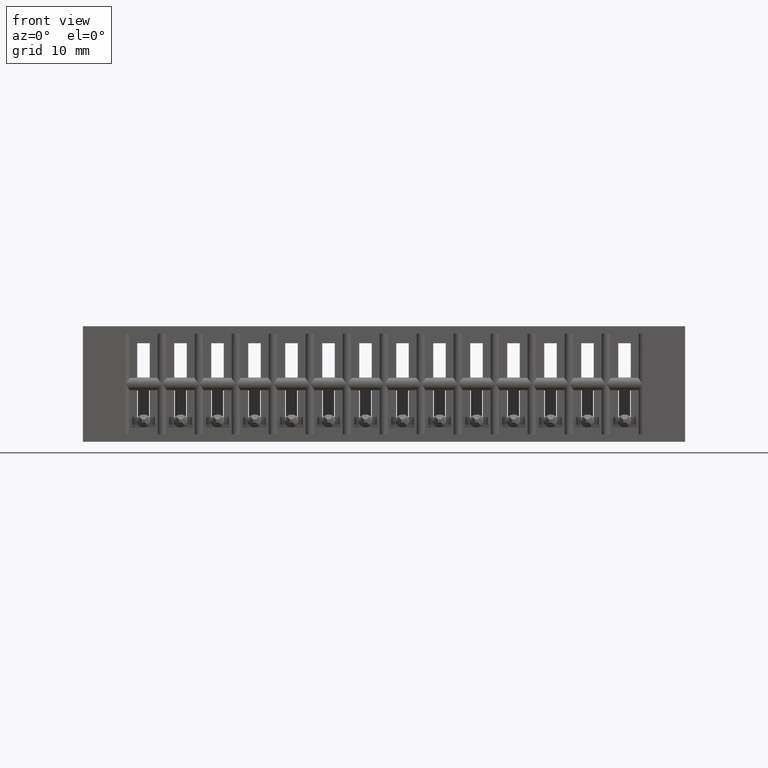
[diagram: clean part render]
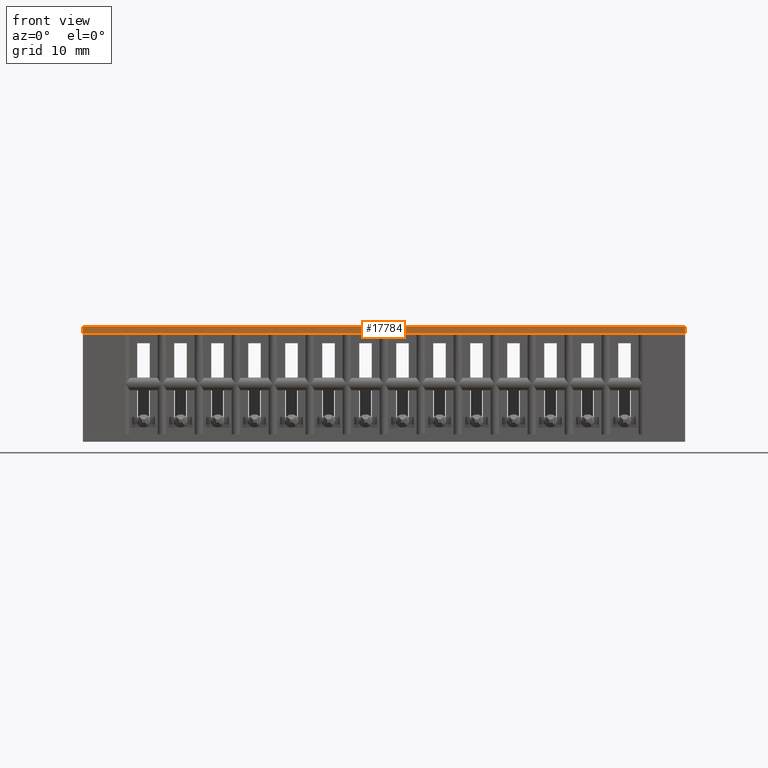
[diagram: same view with one face highlighted and labeled with its STEP entity id]
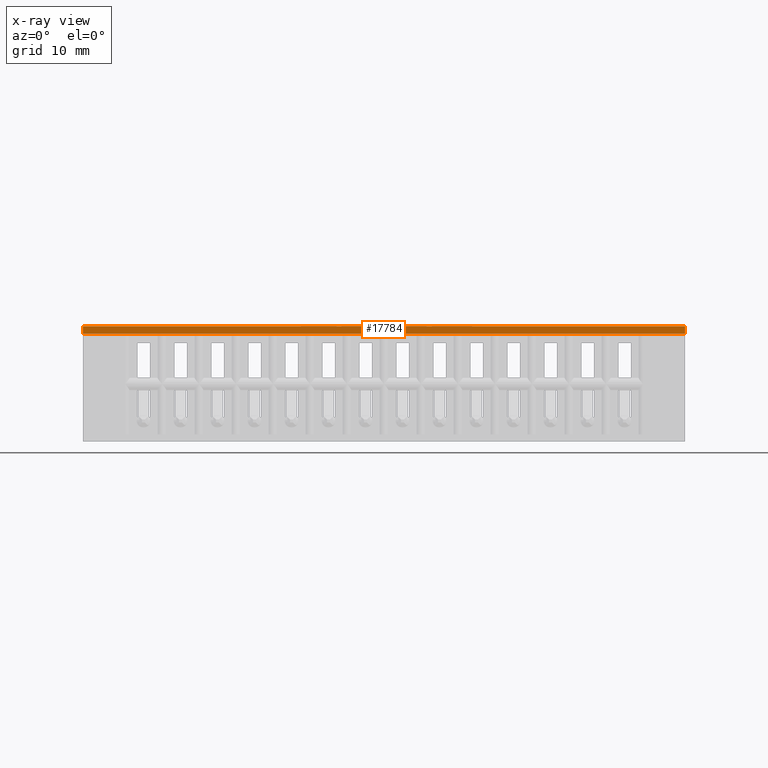
[diagram: x-ray of the same camera — body ghosted, the highlighted face saturated]
A machine part, front view. The second image highlights one B-rep face of the part: STEP entity #17784.
The next image is the same camera in x-ray: the body ghosted, the highlighted face saturated — about 0% of this face is hidden behind the body in this view.
In plain terms, the highlighted planar face has unit normal (0, 1, 0).
Its self-contained STEP definition (entity closure, byte-faithful):
#374 = AXIS2_PLACEMENT_3D ( 'NONE', #7994, #9305, #4053 ) ;
#707 = DIRECTION ( 'NONE',  ( -1.000000000000000000, -0.0000000000000000000, -0.0000000000000000000 ) ) ;
#1010 = EDGE_CURVE ( 'NONE', #9105, #18239, #1819, .T. ) ;
#1819 = LINE ( 'NONE', #5753, #12712 ) ;
#3476 = CARTESIAN_POINT ( 'NONE',  ( 0.0000000000000000000, 0.1000000000000000056, 0.0000000000000000000 ) ) ;
#4053 = DIRECTION ( 'NONE',  ( 0.0000000000000000000, -0.0000000000000000000, 1.000000000000000000 ) ) ;
#4366 = ORIENTED_EDGE ( 'NONE', *, *, #1010, .T. ) ;
#5620 = CARTESIAN_POINT ( 'NONE',  ( 2.035000000000000142, 0.1000000000000000056, 0.0000000000000000000 ) ) ;
#5753 = CARTESIAN_POINT ( 'NONE',  ( 0.0000000000000000000, 0.1000000000000000056, 0.0000000000000000000 ) ) ;
#6192 = LINE ( 'NONE', #7617, #23566 ) ;
#7617 = CARTESIAN_POINT ( 'NONE',  ( 2.035000000000000142, 0.1000000000000000056, -0.02500000000000000486 ) ) ;
#7642 = EDGE_LOOP ( 'NONE', ( #4366, #12983, #21721, #19685 ) ) ;
#7994 = CARTESIAN_POINT ( 'NONE',  ( 2.035000000000000142, 0.1000000000000000056, 0.0000000000000000000 ) ) ;
#9021 = EDGE_CURVE ( 'NONE', #20282, #21457, #9195, .T. ) ;
#9105 = VERTEX_POINT ( 'NONE', #3476 ) ;
#9193 = CARTESIAN_POINT ( 'NONE',  ( 2.035000000000000142, 0.1000000000000000056, -0.02500000000000000486 ) ) ;
#9195 = LINE ( 'NONE', #24584, #11358 ) ;
#9305 = DIRECTION ( 'NONE',  ( -0.0000000000000000000, 1.000000000000000000, 0.0000000000000000000 ) ) ;
#9511 = EDGE_CURVE ( 'NONE', #21457, #18239, #6192, .T. ) ;
#10845 = DIRECTION ( 'NONE',  ( 0.0000000000000000000, 0.0000000000000000000, -1.000000000000000000 ) ) ;
#11358 = VECTOR ( 'NONE', #10845, 39.37007874015748143 ) ;
#12712 = VECTOR ( 'NONE', #15297, 39.37007874015748143 ) ;
#12983 = ORIENTED_EDGE ( 'NONE', *, *, #9511, .F. ) ;
#14176 = LINE ( 'NONE', #18121, #24023 ) ;
#15297 = DIRECTION ( 'NONE',  ( 0.0000000000000000000, 0.0000000000000000000, -1.000000000000000000 ) ) ;
#15864 = DIRECTION ( 'NONE',  ( -1.000000000000000000, -0.0000000000000000000, -0.0000000000000000000 ) ) ;
#17784 = ADVANCED_FACE ( 'NONE', ( #21612 ), #23517, .F. ) ;
#18121 = CARTESIAN_POINT ( 'NONE',  ( 2.035000000000000142, 0.1000000000000000056, 0.0000000000000000000 ) ) ;
#18239 = VERTEX_POINT ( 'NONE', #19401 ) ;
#19401 = CARTESIAN_POINT ( 'NONE',  ( 0.0000000000000000000, 0.1000000000000000056, -0.02500000000000000486 ) ) ;
#19685 = ORIENTED_EDGE ( 'NONE', *, *, #21326, .T. ) ;
#20282 = VERTEX_POINT ( 'NONE', #5620 ) ;
#21326 = EDGE_CURVE ( 'NONE', #20282, #9105, #14176, .T. ) ;
#21457 = VERTEX_POINT ( 'NONE', #9193 ) ;
#21612 = FACE_OUTER_BOUND ( 'NONE', #7642, .T. ) ;
#21721 = ORIENTED_EDGE ( 'NONE', *, *, #9021, .F. ) ;
#23517 = PLANE ( 'NONE',  #374 ) ;
#23566 = VECTOR ( 'NONE', #15864, 39.37007874015748143 ) ;
#24023 = VECTOR ( 'NONE', #707, 39.37007874015748143 ) ;
#24584 = CARTESIAN_POINT ( 'NONE',  ( 2.035000000000000142, 0.1000000000000000056, 0.0000000000000000000 ) ) ;